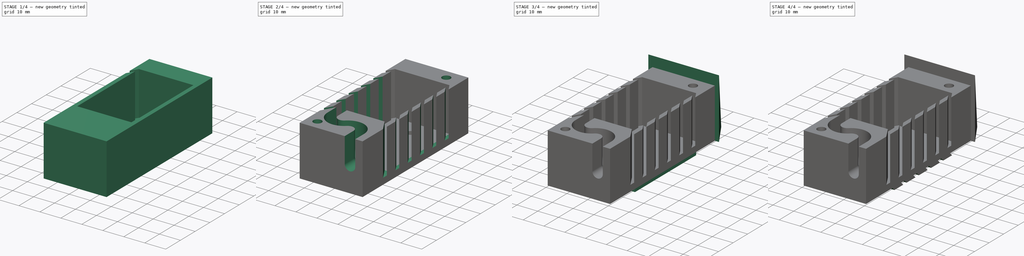
[diagram: build sequence overview — one tinted view per stage of 4, left to right]
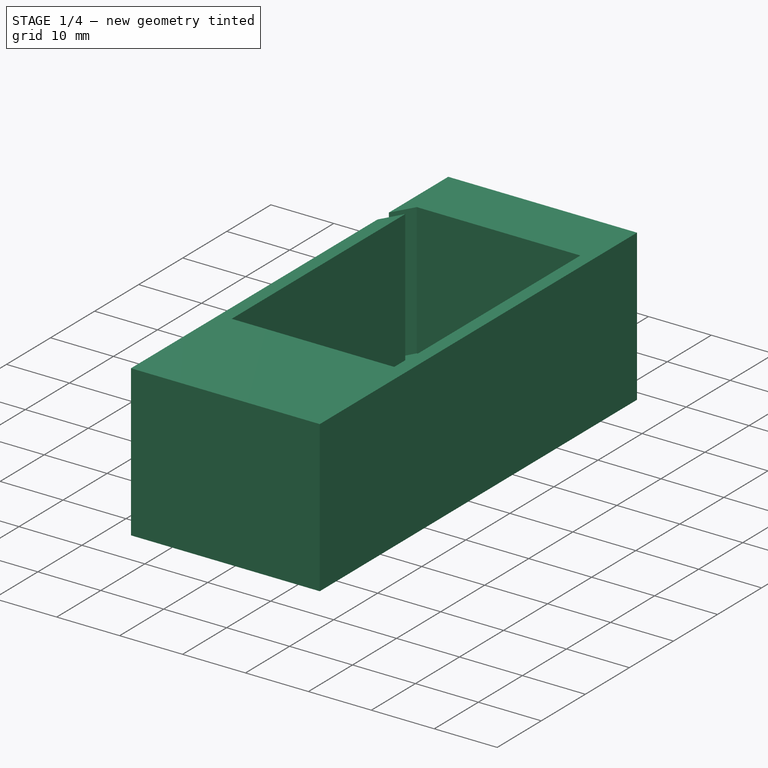
[diagram: stage 1 of 4 — iso view after this stage's code; geometry added in this stage tinted green]
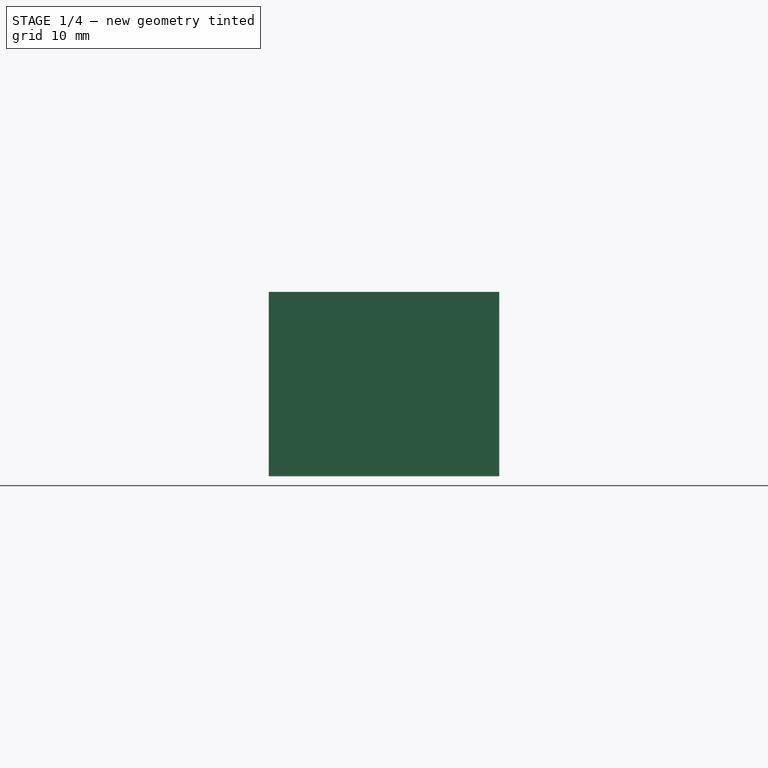
[diagram: stage 1 of 4 — front view after this stage's code; geometry added in this stage tinted green]
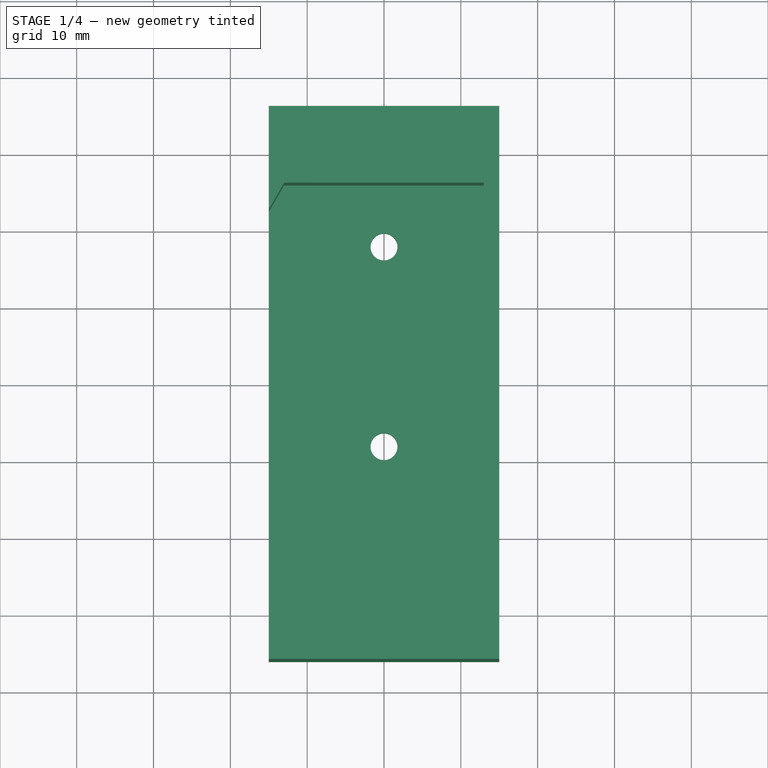
[diagram: stage 1 of 4 — top view after this stage's code; geometry added in this stage tinted green]
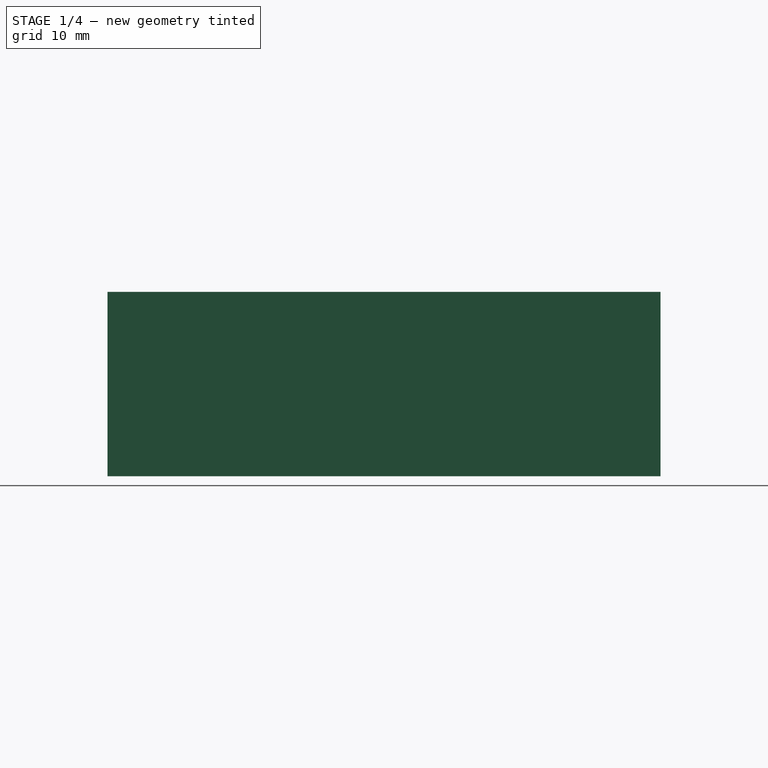
[diagram: stage 1 of 4 — right view after this stage's code; geometry added in this stage tinted green]
FCSTD DOCUMENT  (FreeCAD 0.20R29410 (Git))
Label: Sensor
License: All rights reserved
LicenseURL: http://en.wikipedia.org/wiki/All_rights_reserved
objects: Sketcher::SketchObject×12, PartDesign::Pocket×5, PartDesign::Pad×4, PartDesign::LinearPattern×2, PartDesign::Body×2, PartDesign::Mirrored×1, PartDesign::MultiTransform×1, PartDesign::SubtractivePipe×1, App::FeaturePython×1, PartDesign::Hole×1
note: 40 computed .brp shape members not serialized (recipe doc carries the construction recipe); baked Part::Feature solids carry a one-line shape summary decoded from their .brp

FEATURE [Sketcher::SketchObject] Sketch
  FullyConstrained = true
  MapMode = 5
  Support = -> [XY_Plane]
  expr: Constraints[10] = dd.ddHoehe
  expr: Constraints[15] = dd.ddU_oben + 8mm
  expr: Constraints[16] = dd.ddU_unten + 8mm
  expr: Constraints[9] = dd.ddBreite
  sketch-geometry (6):
    g0: LineSegment StartX=-15 StartY=36 StartZ=0 EndX=15 EndY=36 EndZ=0
    g1: LineSegment StartX=15 StartY=36 StartZ=0 EndX=15 EndY=-36 EndZ=0
    g2: LineSegment StartX=15 StartY=-36 StartZ=0 EndX=-15 EndY=-36 EndZ=0
    g3: LineSegment StartX=-15 StartY=-36 StartZ=0 EndX=-15 EndY=36 EndZ=0
    g4: Circle CenterX=0 CenterY=18 CenterZ=0 NormalX=0 NormalY=0 NormalZ=1 AngleXU=0 Radius=1.75
    g5: Circle CenterX=0 CenterY=-8 CenterZ=0 NormalX=0 NormalY=0 NormalZ=1 AngleXU=0 Radius=1.75
  constraints (17):
    c: Coincident(g0,g1)
    c: Coincident(g1,g2)
    c: Coincident(g2,g3)
    c: Coincident(g3,g0)
    c: Horizontal(g0)
    c: Horizontal(g2)
    c: Vertical(g1)
    c: Vertical(g3)
    c: Symmetric(g0,g1,g-1)
    c: DistanceX(g0,g0) = 30
    c: DistanceY(g3,g3) = 72
    c: PointOnObject(g4,g-2)
    c: PointOnObject(g5,g-2)
    c: Equal(g4,g5)
    c: Diameter(g4) = 3.5
    c: DistanceY(g4,g0) = 18
    c: DistanceY(g1,g5) = 28
FEATURE [PartDesign::Pad] Pad  label="Basis"
  Direction = (0,0,1)
  Length = 24
  Length2 = 10
  Profile = -> Sketch
  ReferenceAxis = -> Sketch [N_Axis]
  Type = 0
  expr: Length = dd.ddDicke
FEATURE [Sketcher::SketchObject] Sketch001
  AttachmentOffset = pos=(0,0,24) rot=(0,0,1;0rad)
  ExternalGeometry = -> [Pad]
  FullyConstrained = true
  MapMode = 5
  Placement = pos=(0,0,24) rot=(0,0,1;0rad)
  Support = -> [XY_Plane]
  expr: .AttachmentOffset.Base.z = dd.ddDicke
  expr: Constraints[10] = dd.ddHoehe / 2 - dd.ddU_unten
  expr: Constraints[8] = dd.ddU_oben
  sketch-geometry (4):
    g0: LineSegment StartX=-13 StartY=26 StartZ=0 EndX=13 EndY=26 EndZ=0
    g1: LineSegment StartX=13 StartY=26 StartZ=0 EndX=13 EndY=-16 EndZ=0
    g2: LineSegment StartX=13 StartY=-16 StartZ=0 EndX=-13 EndY=-16 EndZ=0
    g3: LineSegment StartX=-13 StartY=-16 StartZ=0 EndX=-13 EndY=26 EndZ=0
  constraints (11):
    c: Coincident(g0,g1)
    c: Coincident(g1,g2)
    c: Coincident(g2,g3)
    c: Coincident(g3,g0)
    c: Horizontal(g2)
    c: Vertical(g1)
    c: Vertical(g3)
    c: DistanceX(g-3,g0) = 2
    c: DistanceY(g0,g-3) = 10
    c: Symmetric(g0,g0,g-2)
    c: DistanceY(g2,g-1) = 16
FEATURE [PartDesign::Pocket] Pocket  label="Hohlraum"
  BaseFeature = -> Pad
  Direction = (0,0,-1)
  Length = 21
  Length2 = 5
  Profile = -> Sketch001
  ReferenceAxis = -> Sketch001 [N_Axis]
  Type = 0
  expr: Length = dd.ddDicke - 3mm
FEATURE [Sketcher::SketchObject] Sketch002
  AttachmentOffset = pos=(0,0,24) rot=(0,0,1;0rad)
  FullyConstrained = true
  MapMode = 5
  Placement = pos=(0,0,24) rot=(0,0,1;0rad)
  Support = -> [XY_Plane]
  expr: .AttachmentOffset.Base.z = dd.ddDicke
  expr: Constraints[11] = dd.ddHoehe / 2 - dd.ddU_oben
  expr: Constraints[9] = dd.ddBreite / 2 - 2mm
  sketch-geometry (4):
    g0: LineSegment StartX=-18.7735 StartY=16 StartZ=0 EndX=-13 EndY=26 EndZ=0
    g1: LineSegment StartX=-13 StartY=26 StartZ=0 EndX=-11.5 EndY=26 EndZ=0
    g2: LineSegment StartX=-11.5 StartY=26 StartZ=0 EndX=-17.2735 EndY=16 EndZ=0
    g3: LineSegment StartX=-17.2735 StartY=16 StartZ=0 EndX=-18.7735 EndY=16 EndZ=0
  constraints (12):
    c: Coincident(g0,g1)
    c: Coincident(g1,g2)
    c: Coincident(g2,g3)
    c: Coincident(g3,g0)
    c: Horizontal(g1)
    c: Horizontal(g3)
    c: Parallel(g0,g2)
    c: DistanceX(g3,g3) = 1.5
    c: Angle(g3,g0) = 1.0472
    c: DistanceX(g0,g-1) = 13
    c: DistanceY(g2,g1) = 10
    c: DistanceY(g-1,g1) = 26
FEATURE [PartDesign::Pocket] Pocket001  label="Luftschlitz"
  BaseFeature = -> Pocket
  Direction = (0,0,-1)
  Length = 21
  Length2 = 5
  Profile = -> Sketch002
  ReferenceAxis = -> Sketch002 [N_Axis]
  Type = 0
  expr: Length = dd.ddDicke - 3mm
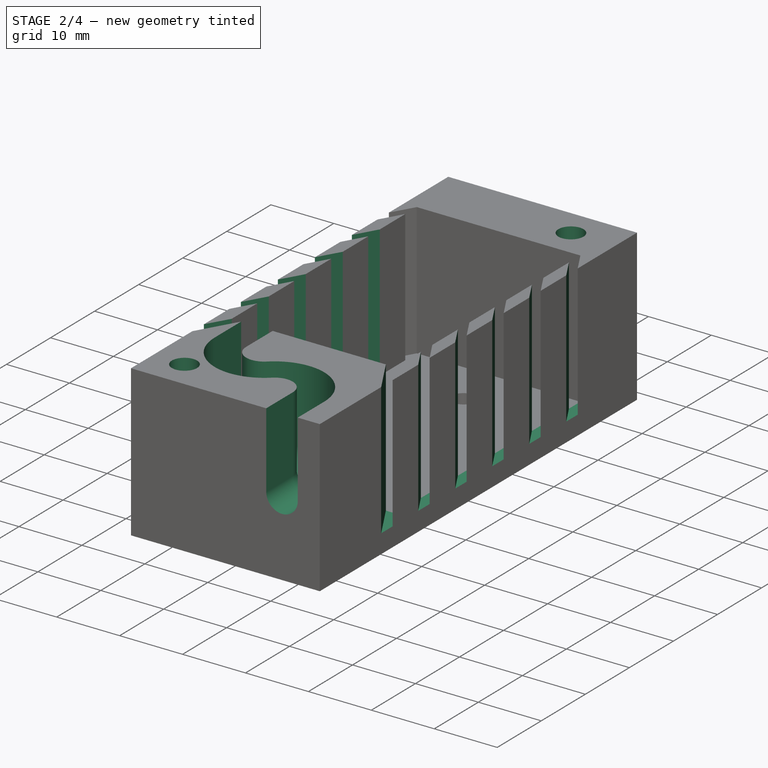
[diagram: stage 2 of 4 — iso view after this stage's code; geometry added in this stage tinted green]
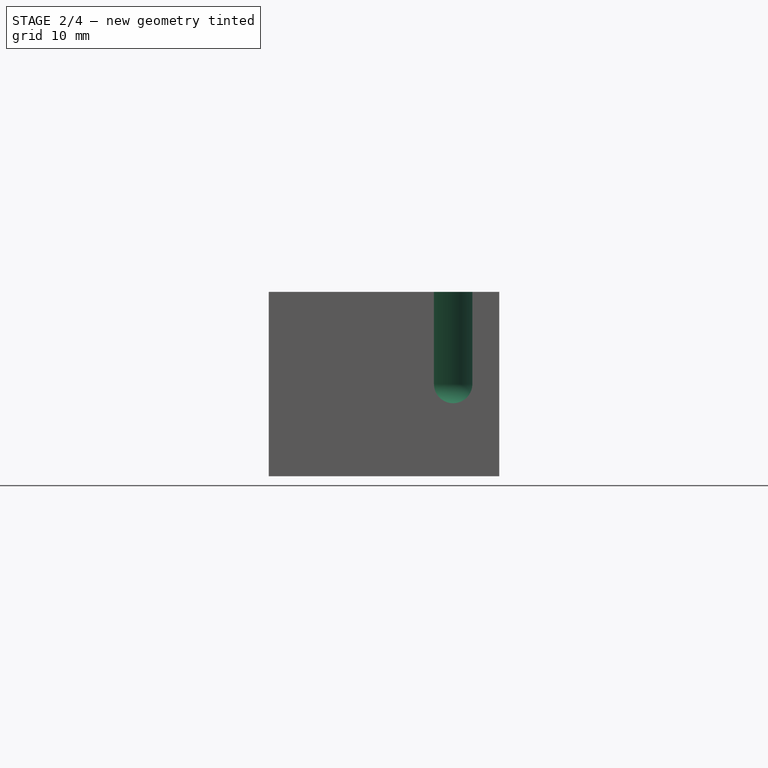
[diagram: stage 2 of 4 — front view after this stage's code; geometry added in this stage tinted green]
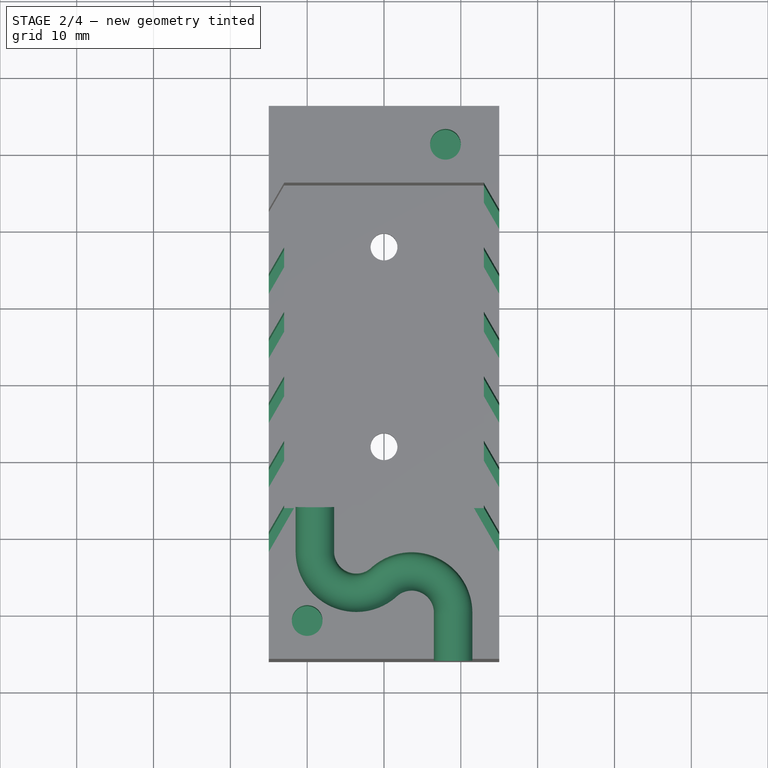
[diagram: stage 2 of 4 — top view after this stage's code; geometry added in this stage tinted green]
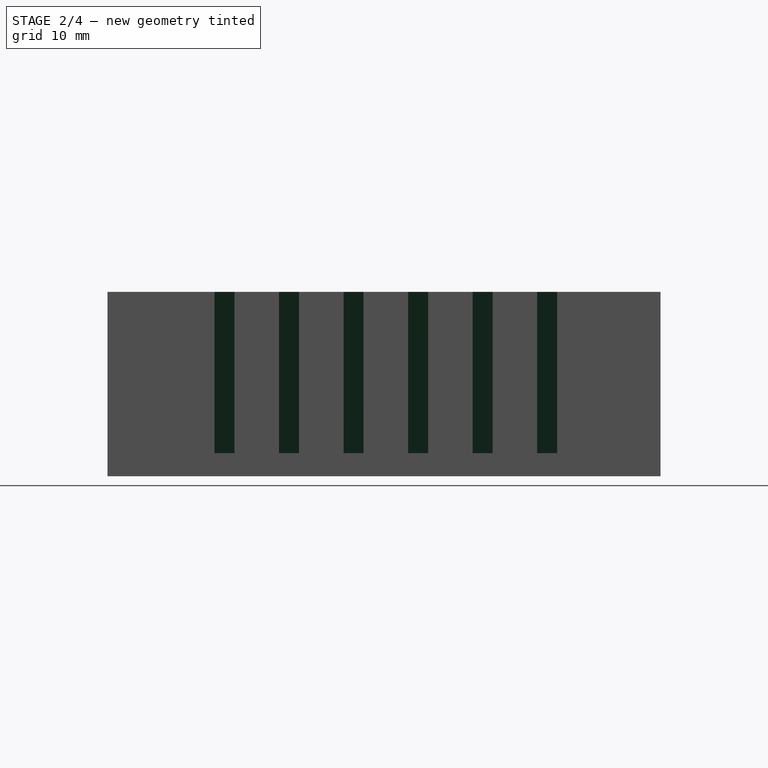
[diagram: stage 2 of 4 — right view after this stage's code; geometry added in this stage tinted green]
FEATURE [PartDesign::LinearPattern] LinearPattern
  Direction = -> Sketch002 [V_Axis]
  Length = 42
  Occurrences = 6
  Reversed = true
  expr: Length = dd.ddHoehe - dd.ddU_oben - dd.ddU_unten
FEATURE [PartDesign::Mirrored] Mirrored
  MirrorPlane = -> Sketch002 [V_Axis]
FEATURE [PartDesign::MultiTransform] MultiTransform
  BaseFeature = -> Pocket001
  Originals = -> [Pocket001]
  Transformations = -> [LinearPattern,Mirrored]
FEATURE [Sketcher::SketchObject] Sketch003  label="Pfad"
  AttachmentOffset = pos=(0,0,24) rot=(0,0,1;0rad)
  FullyConstrained = true
  MapMode = 5
  Placement = pos=(0,0,24) rot=(0,0,1;0rad)
  Support = -> [XY_Plane]
  expr: .AttachmentOffset.Base.z = dd.ddDicke
  expr: Constraints[11] = dd.ddHoehe / 2
  expr: Constraints[6] = dd.ddHoehe / 2 - dd.ddU_unten
  expr: Constraints[7] = dd.ddBreite / 2 - 6mm
  sketch-geometry (4):
    g0: LineSegment StartX=-9 StartY=-16 StartZ=0 EndX=-9 EndY=-22 EndZ=0
    g1: ArcOfCircle CenterX=-3.61111 CenterY=-22 CenterZ=0 NormalX=0 NormalY=0 NormalZ=1 AngleXU=0 Radius=5.38889 StartAngle=3.14159 EndAngle=5.44674
    g2: ArcOfCircle CenterX=3.61111 CenterY=-30 CenterZ=0 NormalX=0 NormalY=0 NormalZ=1 AngleXU=0 Radius=5.38889 StartAngle=-7.11e-14 EndAngle=2.30514
    g3: LineSegment StartX=9 StartY=-30 StartZ=0 EndX=9 EndY=-36 EndZ=0
  constraints (12):
    c: Vertical(g0)
    c: Tangent(g0,g1) = -1.5708
    c: PointOnObject(g1,g-2)
    c: Tangent(g1,g2) = 1.5708
    c: Vertical(g3)
    c: Tangent(g2,g3) = 1.5708
    c: DistanceY(g0,g-1) = 16
    c: DistanceX(g0,g-1) = 9
    c: DistanceX(g-1,g3) = 9
    c: Equal(g0,g3)
    c: DistanceY(g0,g0) = 6
    c: DistanceY(g3,g-1) = 36
FEATURE [Sketcher::SketchObject] Sketch004  label="Profil"
  AttachmentOffset = pos=(0,0,36) rot=(0,0,1;0rad)
  FullyConstrained = true
  MapMode = 5
  Placement = pos=(0,-36,-8e-15) rot=(1,0,0;1.5708rad)
  Support = -> [XZ_Plane]
  expr: .AttachmentOffset.Base.z = dd.ddHoehe / 2
  expr: Constraints[11] = dd.ddBreite / 2 - 6mm
  expr: Constraints[8] = dd.ddDicke
  sketch-geometry (5):
    g0: LineSegment StartX=6.5 StartY=24 StartZ=0 EndX=6.5 EndY=12 EndZ=0
    g1: ArcOfCircle CenterX=9 CenterY=12 CenterZ=0 NormalX=0 NormalY=0 NormalZ=1 AngleXU=0 Radius=2.5 StartAngle=3.14159 EndAngle=6.28319
    g2: LineSegment StartX=11.5 StartY=12 StartZ=0 EndX=11.5 EndY=24 EndZ=0
    g3: LineSegment StartX=11.5 StartY=24 StartZ=0 EndX=6.5 EndY=24 EndZ=0
    g4: GeomPoint X=9 Y=24 Z=0
  constraints (12):
    c: Vertical(g0)
    c: Tangent(g0,g1) = -1.5708
    c: Vertical(g2)
    c: Coincident(g2,g3)
    c: Coincident(g3,g0)
    c: Horizontal(g3)
    c: DistanceX(g3,g3) = 5
    c: DistanceY(g0,g0) = 12
    c: DistanceY(g-1,g0) = 24
    c: Tangent(g1,g2) = -1.5708
    c: Symmetric(g0,g2,g4)
    c: DistanceX(g-1,g4) = 9
FEATURE [PartDesign::SubtractivePipe] SubtractivePipe  label="Kabel"
  AuxilleryCurvelinear = true
  AuxillerySpineTangent = false
  BaseFeature = -> MultiTransform
  Binormal = (0,0,0)
  Mode = 0
  Profile = -> Sketch004
  Spine = -> Sketch003
  SpineTangent = false
  Transformation = 0
  Transition = 0
FEATURE [Sketcher::SketchObject] Sketch005
  AttachmentOffset = pos=(0,0,24) rot=(0,0,1;0rad)
  FullyConstrained = true
  MapMode = 5
  Placement = pos=(0,0,24) rot=(0,0,1;0rad)
  Support = -> [XY_Plane]
  expr: .AttachmentOffset.Base.z = dd.ddDicke
  expr: Constraints[2] = dd.ddBreite / 2 - 7mm
  expr: Constraints[3] = dd.ddHoehe / 2 - dd.ddU_oben / 2
  expr: Constraints[4] = dd.ddHoehe / 2 - 5mm
  expr: Constraints[5] = dd.ddBreite / 2 - 5mm
  sketch-geometry (2):
    g0: Circle CenterX=-10 CenterY=-31 CenterZ=0 NormalX=0 NormalY=0 NormalZ=1 AngleXU=0 Radius=2
    g1: Circle CenterX=8 CenterY=31 CenterZ=0 NormalX=0 NormalY=0 NormalZ=1 AngleXU=0 Radius=2
  constraints (6):
    c: Equal(g0,g1)
    c: Diameter(g1) = 4
    c: DistanceX(g-1,g1) = 8
    c: DistanceY(g-1,g1) = 31
    c: DistanceY(g0,g-1) = 31
    c: DistanceX(g0,g-1) = 10
FEATURE [PartDesign::Pocket] Pocket002
  BaseFeature = -> SubtractivePipe
  Direction = (0,0,-1)
  Length = 7.5
  Length2 = 5
  Profile = -> Sketch005
  ReferenceAxis = -> Sketch005 [N_Axis]
  Type = 0
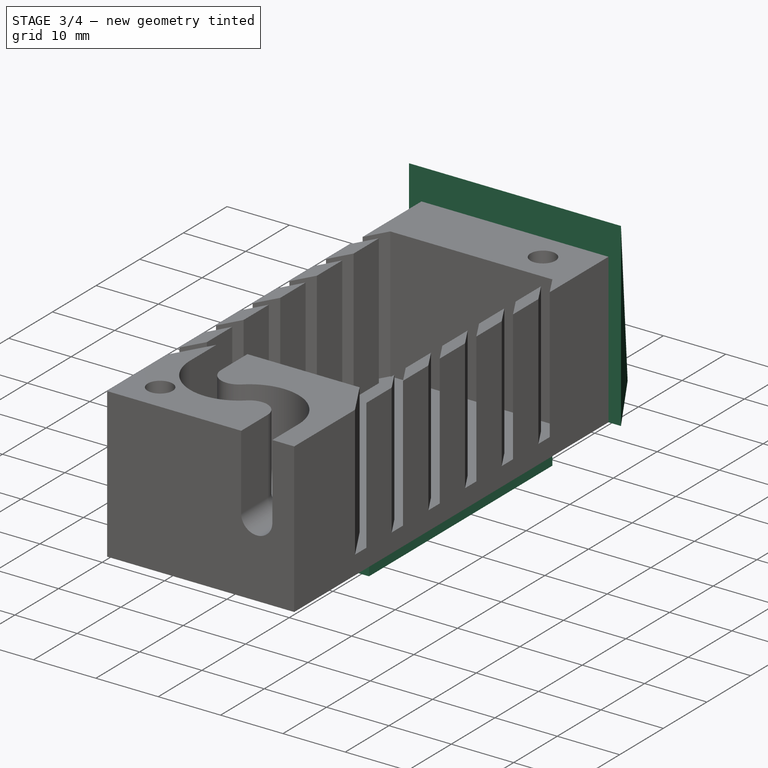
[diagram: stage 3 of 4 — iso view after this stage's code; geometry added in this stage tinted green]
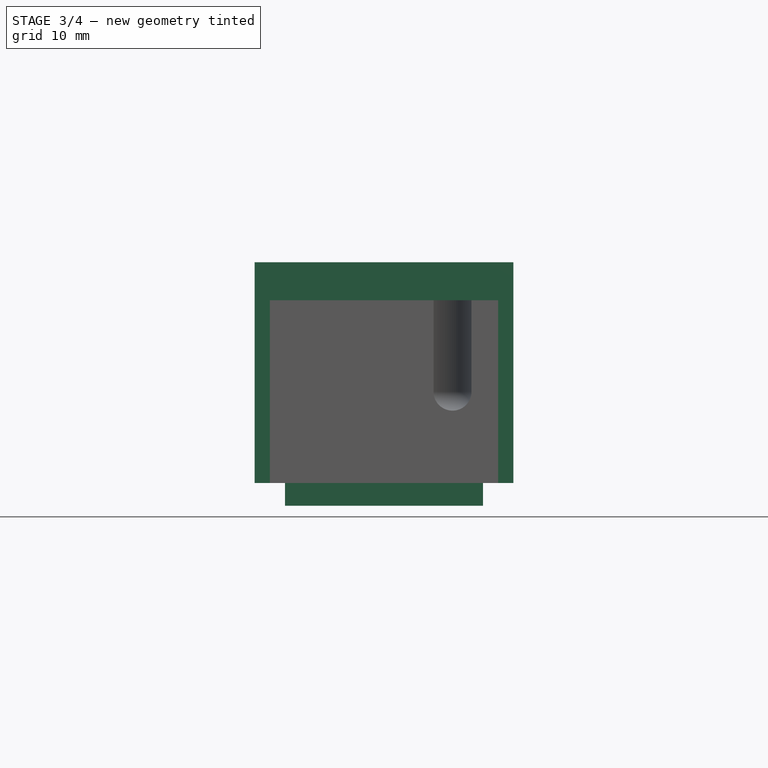
[diagram: stage 3 of 4 — front view after this stage's code; geometry added in this stage tinted green]
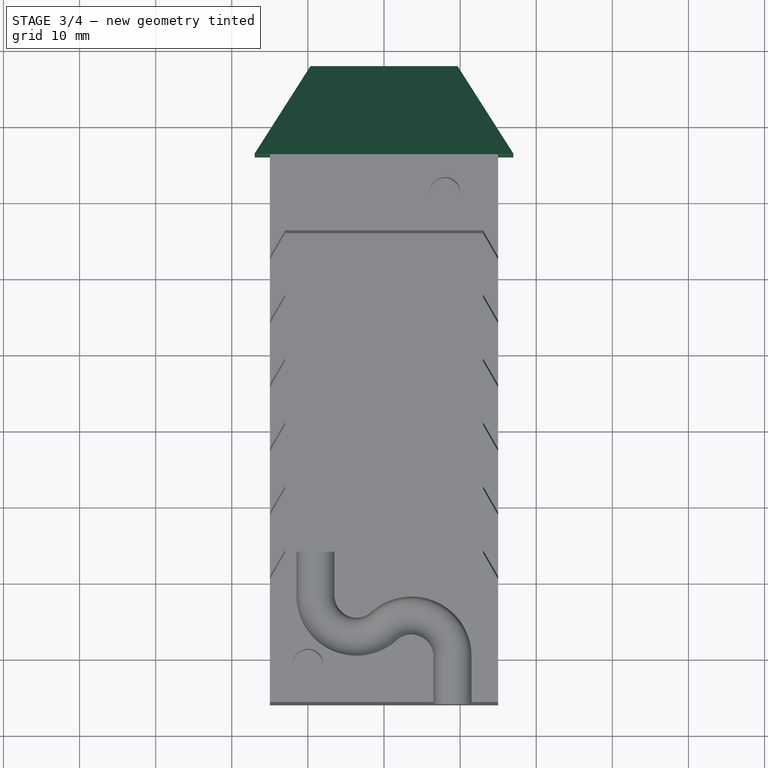
[diagram: stage 3 of 4 — top view after this stage's code; geometry added in this stage tinted green]
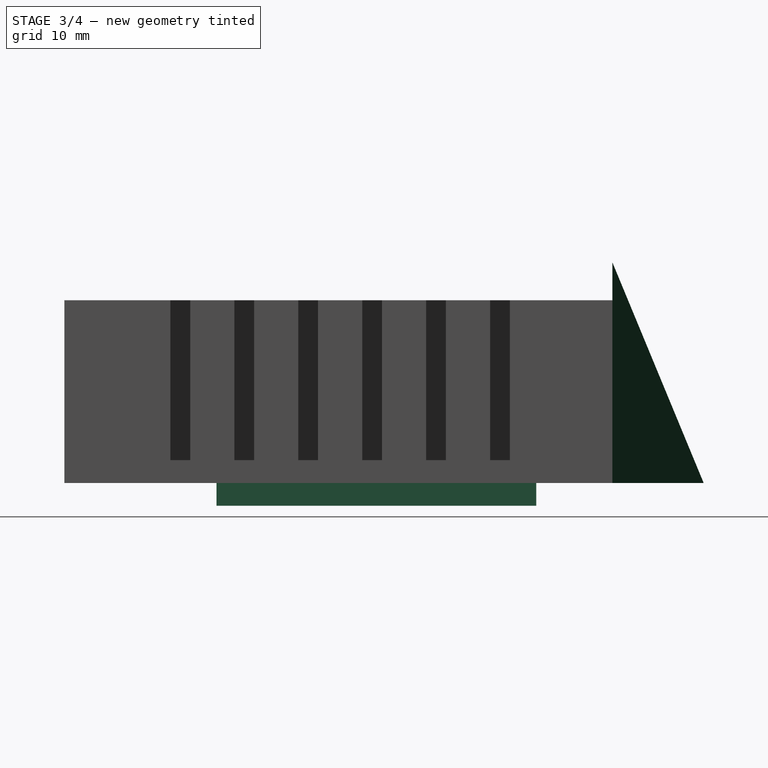
[diagram: stage 3 of 4 — right view after this stage's code; geometry added in this stage tinted green]
FEATURE [App::FeaturePython] dd  # WARN: FeaturePython — macro-defined, semantics opaque (R4)
  DynamicData = Created with DynamicData (v2.46) workbench. | This is a simple container object built | for holding custom properties.
  ddBreite = 30
  ddDicke = 24
  ddHoehe = 72
  ddU_oben = 10
  ddU_unten = 20
FEATURE [Sketcher::SketchObject] Sketch006
  FullyConstrained = true
  MapMode = 5
  Support = -> [XY_Plane001]
  expr: Constraints[10] = dd.ddHoehe
  expr: Constraints[9] = dd.ddBreite
  sketch-geometry (4):
    g0: LineSegment StartX=-15 StartY=36 StartZ=0 EndX=15 EndY=36 EndZ=0
    g1: LineSegment StartX=15 StartY=36 StartZ=0 EndX=15 EndY=-36 EndZ=0
    g2: LineSegment StartX=15 StartY=-36 StartZ=0 EndX=-15 EndY=-36 EndZ=0
    g3: LineSegment StartX=-15 StartY=-36 StartZ=0 EndX=-15 EndY=36 EndZ=0
  constraints (11):
    c: Coincident(g0,g1)
    c: Coincident(g1,g2)
    c: Coincident(g2,g3)
    c: Coincident(g3,g0)
    c: Horizontal(g0)
    c: Horizontal(g2)
    c: Vertical(g1)
    c: Vertical(g3)
    c: Symmetric(g0,g1,g-1)
    c: DistanceX(g0,g0) = 30
    c: DistanceY(g3,g3) = 72
FEATURE [PartDesign::Pad] Pad001  label="Oben"
  Direction = (0,0,1)
  Length = 3
  Length2 = 10
  Profile = -> Sketch006
  ReferenceAxis = -> Sketch006 [N_Axis]
  Type = 0
FEATURE [Sketcher::SketchObject] Sketch007
  FullyConstrained = true
  MapMode = 5
  Support = -> [XY_Plane001]
  expr: Constraints[7] = dd.ddBreite - 4mm
  expr: Constraints[8] = dd.ddHoehe - dd.ddU_oben - dd.ddU_unten
  expr: Constraints[9] = dd.ddHoehe / 2 - dd.ddU_oben
  sketch-geometry (4):
    g0: LineSegment StartX=-13 StartY=26 StartZ=0 EndX=13 EndY=26 EndZ=0
    g1: LineSegment StartX=13 StartY=26 StartZ=0 EndX=13 EndY=-16 EndZ=0
    g2: LineSegment StartX=13 StartY=-16 StartZ=0 EndX=-13 EndY=-16 EndZ=0
    g3: LineSegment StartX=-13 StartY=-16 StartZ=0 EndX=-13 EndY=26 EndZ=0
  constraints (11):
    c: Coincident(g0,g1)
    c: Coincident(g1,g2)
    c: Coincident(g2,g3)
    c: Coincident(g3,g0)
    c: Horizontal(g2)
    c: Vertical(g1)
    c: Vertical(g3)
    c: DistanceX(g0,g0) = 26
    c: DistanceY(g3,g3) = 42
    c: DistanceY(g-1,g0) = 26
    c: Symmetric(g0,g0,g-2)
FEATURE [PartDesign::Pad] Pad002  label="Innen"
  BaseFeature = -> Pad001
  Direction = (0,0,1)
  Length = 3
  Length2 = 10
  Profile = -> Sketch007
  ReferenceAxis = -> Sketch007 [N_Axis]
  Reversed = true
  Type = 0
FEATURE [PartDesign::Body] Body001  label="Deckel"
  Group = -> [Sketch006,Pad001,Sketch007,Pad002,Sketch008,Pocket003,LinearPattern001,Sketch009,Hole001]
  Origin = -> Origin001
  Placement = pos=(0,0,24) rot=(0,0,1;0rad)
  Tip = -> Hole001
  expr: .Placement.Base.z = dd.ddDicke
FEATURE [Sketcher::SketchObject] Sketch010
  AttachmentOffset = pos=(36,0,0) rot=(0,0,1;0rad)
  FullyConstrained = true
  MapMode = 5
  Placement = pos=(8e-15,36,-8e-15) rot=(0.57735,0.57735,0.57735;2.0944rad)
  Support = -> [YZ_Plane]
  expr: .AttachmentOffset.Base.x = dd.ddHoehe / 2
  expr: Constraints[6] = dd.ddDicke + 5mm
  sketch-geometry (3):
    g0: LineSegment StartX=0 StartY=0 StartZ=0 EndX=0 EndY=29 EndZ=0
    g1: LineSegment StartX=0 StartY=29 StartZ=0 EndX=12 EndY=0 EndZ=0
    g2: LineSegment StartX=12 StartY=0 StartZ=0 EndX=0 EndY=0 EndZ=0
  constraints (8):
    c: Coincident(g-1,g0)
    c: PointOnObject(g0,g-2)
    c: Coincident(g0,g1)
    c: PointOnObject(g1,g-1)
    c: Coincident(g1,g2)
    c: Coincident(g2,g0)
    c: DistanceY(g0,g0) = 29
    c: DistanceX(g2,g2) = 12
FEATURE [PartDesign::Pad] Pad003
  BaseFeature = -> Pocket002
  Direction = (1,-2e-16,3e-16)
  Length = 17
  Length2 = 17
  Profile = -> Sketch010
  ReferenceAxis = -> Sketch010 [N_Axis]
  Type = 4
  expr: Length = dd.ddBreite / 2 + 2mm
  expr: Length2 = dd.ddBreite / 2 + 2mm
FEATURE [Sketcher::SketchObject] Sketch011
  FullyConstrained = true
  MapMode = 5
  Support = -> [XY_Plane]
  expr: Constraints[10] = dd.ddBreite + 4mm
  expr: Constraints[14] = dd.ddHoehe / 2
  sketch-geometry (6):
    g0: LineSegment StartX=-17 StartY=36 StartZ=0 EndX=-6 EndY=54 EndZ=0
    g1: LineSegment StartX=-6 StartY=54 StartZ=0 EndX=6 EndY=54 EndZ=0
    g2: LineSegment StartX=6 StartY=54 StartZ=0 EndX=17 EndY=36 EndZ=0
    g3: LineSegment StartX=17 StartY=36 StartZ=0 EndX=17 EndY=56 EndZ=0
    g4: LineSegment StartX=17 StartY=56 StartZ=0 EndX=-17 EndY=56 EndZ=0
    g5: LineSegment StartX=-17 StartY=56 StartZ=0 EndX=-17 EndY=36 EndZ=0
  constraints (16):
    c: Coincident(g0,g1)
    c: Coincident(g1,g2)
    c: Coincident(g2,g3)
    c: Vertical(g3)
    c: Coincident(g3,g4)
    c: Horizontal(g4)
    c: Coincident(g4,g5)
    c: Coincident(g5,g0)
    c: Vertical(g5)
    c: Symmetric(g0,g2,g-2)
    c: DistanceX(g4,g4) = 34
    c: Symmetric(g0,g1,g-2)
    c: DistanceY(g5,g5) = 20
    c: DistanceY(g0,g0) = 18
    c: DistanceY(g-1,g0) = 36
    c: DistanceX(g1,g1) = 12
FEATURE [PartDesign::Pocket] Pocket004
  BaseFeature = -> Pad003
  Direction = (0,0,-1)
  Length = 5
  Length2 = 5
  Profile = -> Sketch011
  ReferenceAxis = -> Sketch011 [N_Axis]
  Reversed = true
  Type = 1
FEATURE [PartDesign::Body] Body  label="Gehaeuse"
  Group = -> [Sketch,Pad,Sketch001,Pocket,Sketch002,Pocket001,MultiTransform,LinearPattern,Mirrored,Sketch003,Sketch004,SubtractivePipe,Sketch005,Pocket002,Sketch010,Pad003,Sketch011,Pocket004]
  Origin = -> Origin
  Tip = -> Pocket004
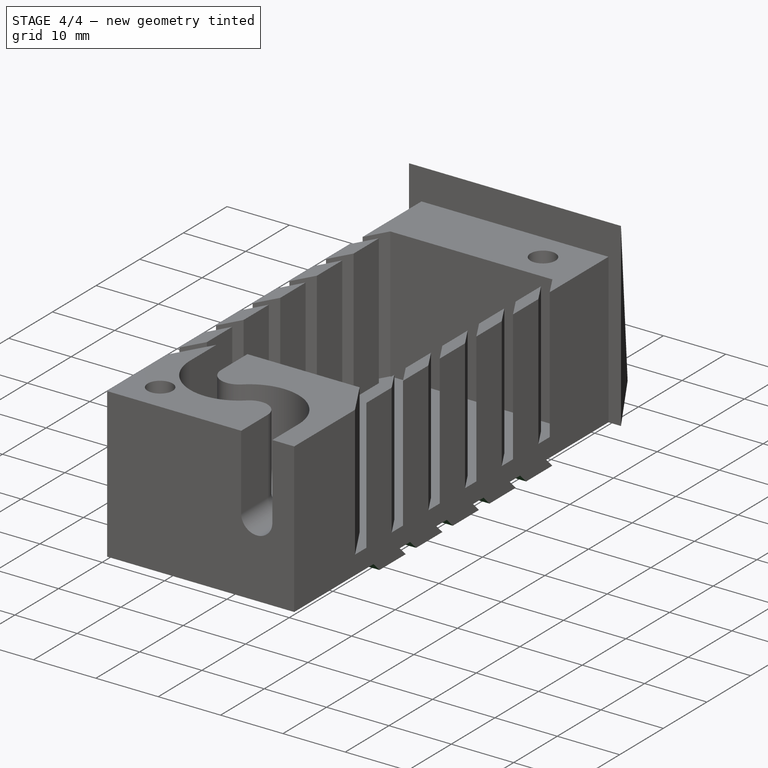
[diagram: stage 4 of 4 — iso view after this stage's code; geometry added in this stage tinted green]
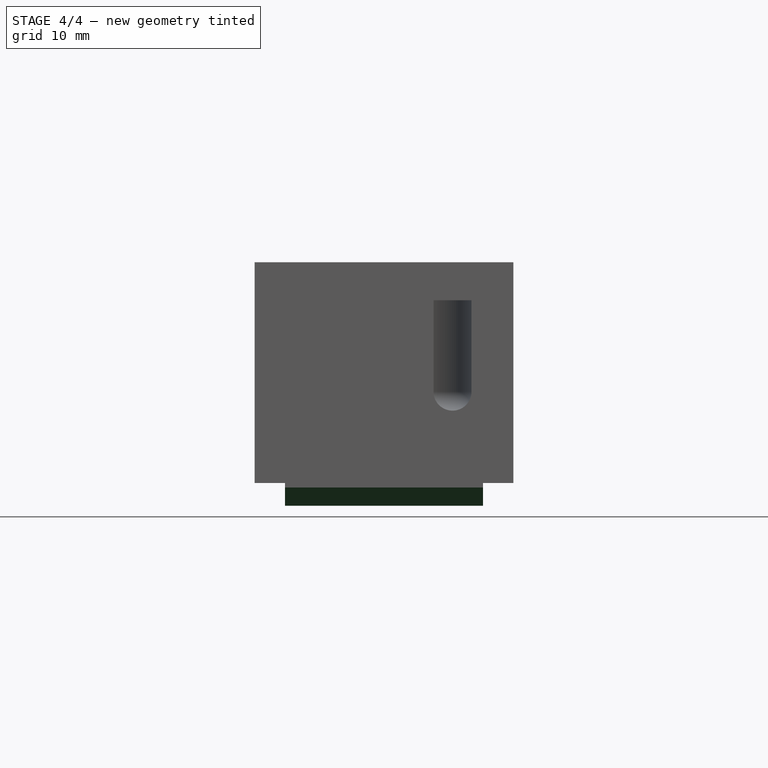
[diagram: stage 4 of 4 — front view after this stage's code; geometry added in this stage tinted green]
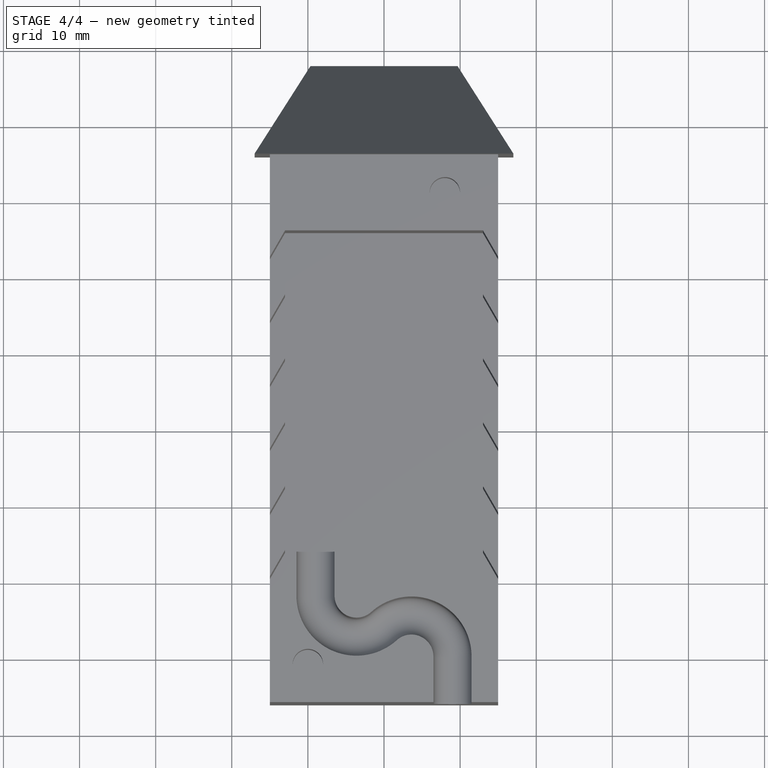
[diagram: stage 4 of 4 — top view after this stage's code; geometry added in this stage tinted green]
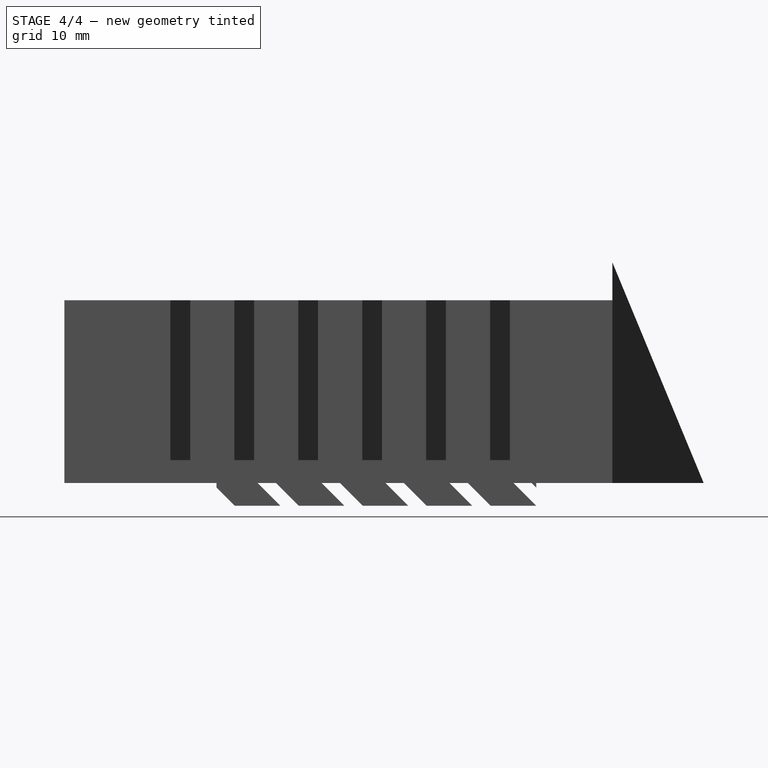
[diagram: stage 4 of 4 — right view after this stage's code; geometry added in this stage tinted green]
FEATURE [Sketcher::SketchObject] Sketch008
  AttachmentOffset = pos=(0,0,3) rot=(0,0,1;0rad)
  FullyConstrained = true
  MapMode = 5
  Placement = pos=(0,0,3) rot=(0,0,1;0rad)
  Support = -> [XY_Plane001]
  expr: Constraints[8] = dd.ddBreite - 4mm
  expr: Constraints[9] = dd.ddHoehe / 2 - dd.ddU_oben - 6mm
  sketch-geometry (4):
    g0: LineSegment StartX=-13 StartY=22.4 StartZ=0 EndX=13 EndY=22.4 EndZ=0
    g1: LineSegment StartX=13 StartY=22.4 StartZ=0 EndX=13 EndY=20 EndZ=0
    g2: LineSegment StartX=13 StartY=20 StartZ=0 EndX=-13 EndY=20 EndZ=0
    g3: LineSegment StartX=-13 StartY=20 StartZ=0 EndX=-13 EndY=22.4 EndZ=0
  constraints (11):
    c: Coincident(g0,g1)
    c: Coincident(g1,g2)
    c: Coincident(g2,g3)
    c: Coincident(g3,g0)
    c: Horizontal(g2)
    c: Vertical(g1)
    c: Vertical(g3)
    c: Symmetric(g0,g0,g-2)
    c: DistanceX(g0,g0) = 26
    c: DistanceY(g-1,g1) = 20
    c: DistanceY(g1,g1) = 2.4
FEATURE [PartDesign::Pocket] Pocket003  label="Luftschlitz_2"
  BaseFeature = -> Pad002
  Direction = (0,1,-1)
  Length = 5
  Length2 = 5
  Profile = -> Sketch008
  ReferenceAxis = -> Sketch008 [N_Axis]
  Type = 1
  UseCustomVector = true
FEATURE [PartDesign::LinearPattern] LinearPattern001
  BaseFeature = -> Pocket003
  Direction = -> Sketch008 [V_Axis]
  Length = 42
  Occurrences = 6
  Originals = -> [Pocket003]
  Reversed = true
  expr: Length = dd.ddHoehe - dd.ddU_oben - dd.ddU_unten
FEATURE [Sketcher::SketchObject] Sketch009
  AttachmentOffset = pos=(0,0,3) rot=(0,0,1;0rad)
  FullyConstrained = true
  MapMode = 5
  Placement = pos=(0,0,3) rot=(0,0,1;0rad)
  Support = -> [XY_Plane001]
  expr: .AttachmentOffset.Base.z = 3mm
  expr: Constraints[2] = dd.ddHoehe / 2 - dd.ddU_oben / 2
  expr: Constraints[3] = dd.ddBreite / 2 - 7mm
  expr: Constraints[4] = dd.ddHoehe / 2 - dd.ddU_oben / 2
  expr: Constraints[5] = dd.ddBreite / 2 - 5mm
  sketch-geometry (2):
    g0: Circle CenterX=8 CenterY=31 CenterZ=0 NormalX=0 NormalY=0 NormalZ=1 AngleXU=0 Radius=1.5
    g1: Circle CenterX=-10 CenterY=-31 CenterZ=0 NormalX=0 NormalY=0 NormalZ=1 AngleXU=0 Radius=1.5
  constraints (6):
    c: Equal(g0,g1)
    c: Diameter(g0) = 3
    c: DistanceY(g-1,g0) = 31
    c: DistanceX(g-1,g0) = 8
    c: DistanceY(g1,g-1) = 31
    c: DistanceX(g1,g-1) = 10
FEATURE [PartDesign::Hole] Hole001  label="Deckelschrauben"
  BaseFeature = -> LinearPattern001
  CustomThreadClearance = 0
  Depth = 25
  DepthType = 0
  Diameter = 3
  DrillForDepth = false
  DrillPoint = 1
  DrillPointAngle = 118
  HoleCutCountersinkAngle = 90
  HoleCutCustomValues = false
  HoleCutDepth = 0
  HoleCutDiameter = 6.1
  HoleCutType = 2
  ModelThread = false
  Profile = -> Sketch009
  Tapered = false
  TaperedAngle = 90
  ThreadClass = 0
  ThreadDepth = 25
  ThreadDepthType = 0
  ThreadDirection = 0
  ThreadFit = 0
  ThreadSize = 0
  ThreadType = 0
  Threaded = false
  UseCustomThreadClearance = false
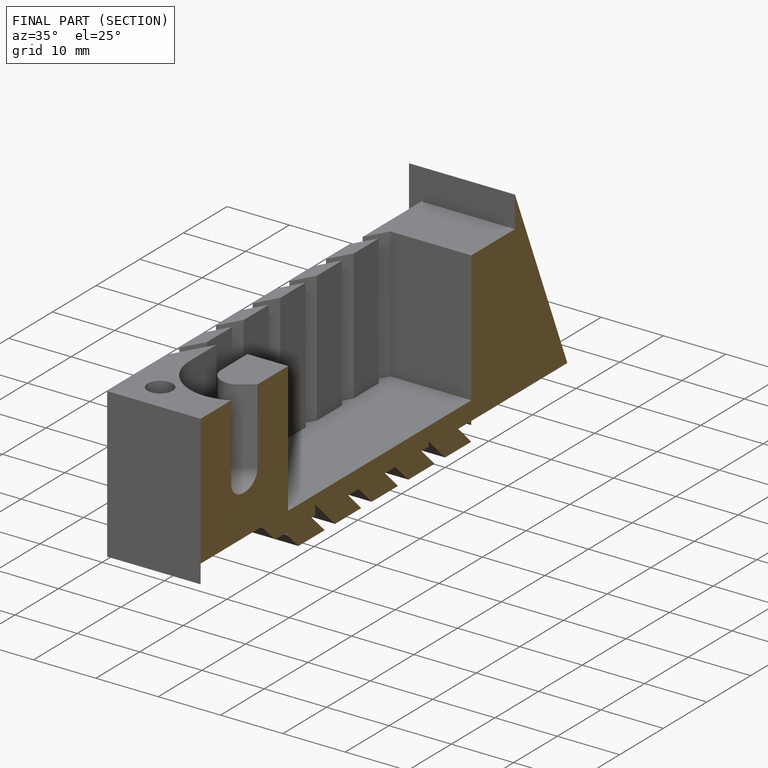
[diagram: finished part — half-section view (interior)]
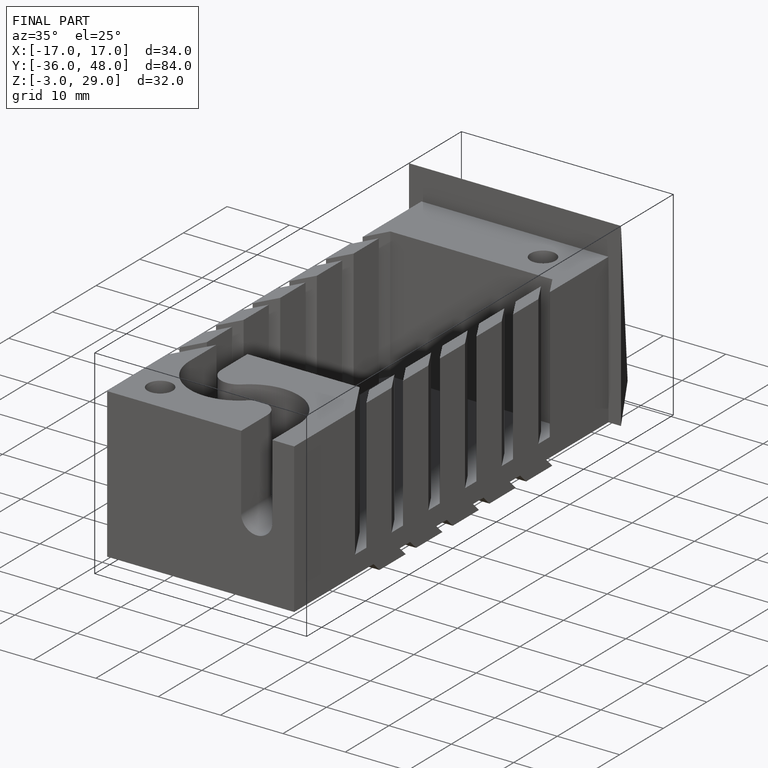
[diagram: finished part — iso view with bounding-box wireframe]
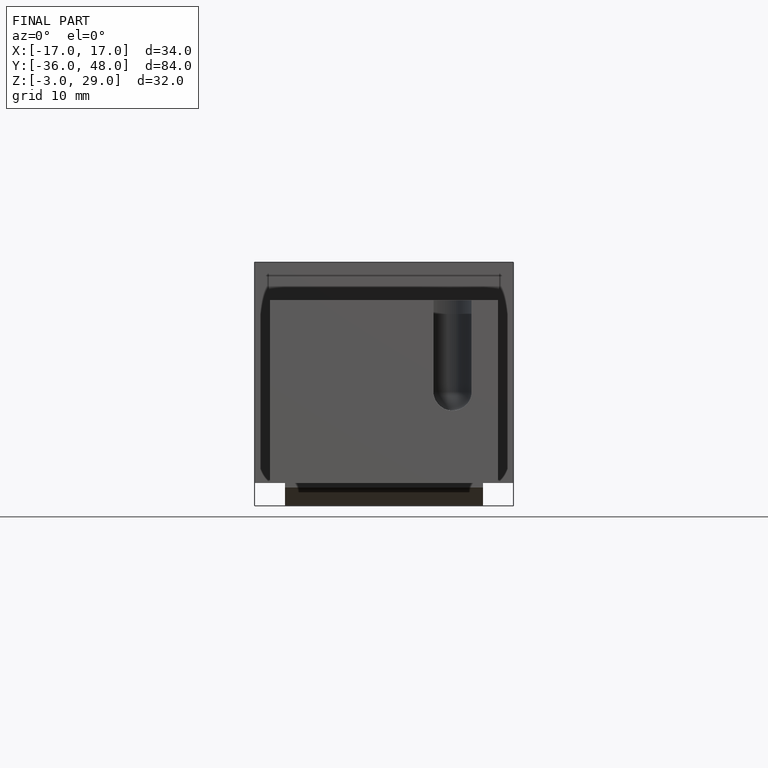
[diagram: finished part — front view with bounding-box wireframe]
